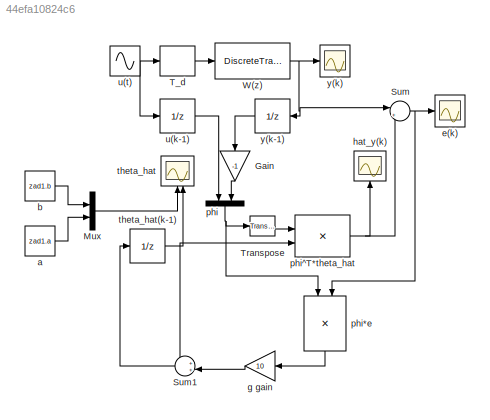
MODEL slx_44efa10824c6
KIND model
CONFIG AbsTol = auto
CONFIG EnableMultiTasking = off
CONFIG FixedStep = 1e-3
CONFIG MaxStep = auto
CONFIG MinStep = auto
CONFIG RelTol = 1e-3
CONFIG SampleTimeConstraint = Unconstrained
CONFIG SolverName = FixedStepAuto
CONFIG StartTime = 0.0
CONFIG StopTime = 20.0
BLOCK [Gain] Gain
  Gain = -1
  NameLocation = left
BLOCK [Mux] Mux
  DisplayOption = bar
  Inputs = 2
BLOCK [Sum] Sum
  Inputs = |+-
BLOCK [Sum] Sum1
  Inputs = ++|
  NameLocation = top
BLOCK [ZeroOrderHold] T_d
  SampleTime = 0.1
BLOCK [Reference] Transpose  REF=matrix_library/Transpose
  LibrarySourceBlock = simulink/Matrix\nOperations/Transpose
  SourceBlock = matrix_library/Transpose
  SourceType = Transpose
BLOCK [DiscreteTransferFcn] W(z)
  Denominator = [1 zad1.a]
  InputPortMap = u0
  Numerator = [0 zad1.b]
BLOCK [Constant] a
  Value = zad1.a
BLOCK [Constant] b
  Value = zad1.b
BLOCK [Scope] e(k)
  Floating = off
  NumInputPorts = 1
  ScopeSpecificationString = Simulink.scopes.TimeScopeBlockCfg('CurrentConfiguration', extmgr.ConfigurationSet(extmgr.Configuration('Core','General UI',true,'FigureColor',[1 1 1]),extmgr.Configuration('Core','Source UI',true),extmgr.Configuration('Sources','WiredSimulink',true,'DataLoggingVariableName','ScopeData2'),extmgr.Configuration('Visuals','Time Domain',true,'SerializedDisplays',{struct('MinYLimReal','-2209249559441154...<+3732ch>
BLOCK [Gain] g gain
  Gain = 10
  NameLocation = top
BLOCK [Scope] hat_y(k)
  Floating = off
  NameLocation = top
  NumInputPorts = 1
  ScopeSpecificationString = Simulink.scopes.TimeScopeBlockCfg('CurrentConfiguration', extmgr.ConfigurationSet(extmgr.Configuration('Core','General UI',true,'FigureColor',[1 1 1]),extmgr.Configuration('Core','Source UI',true),extmgr.Configuration('Sources','WiredSimulink',true,'DataLoggingVariableName','ScopeData1'),extmgr.Configuration('Visuals','Time Domain',true,'SerializedDisplays',{struct('MinYLimReal','-1921981410354740...<+3751ch>
BLOCK [Mux] phi
  DisplayOption = bar
  Inputs = 2
  NameLocation = left
BLOCK [Product] phi*e
  Multiplication = Matrix(*)
  NameLocation = left
BLOCK [Product] phi^T*theta_hat
  Multiplication = Matrix(*)
BLOCK [Scope] theta_hat
  Floating = off
  NameLocation = left
  NumInputPorts = 2
  ScopeSpecificationString = Simulink.scopes.TimeScopeBlockCfg('CurrentConfiguration', extmgr.ConfigurationSet(extmgr.Configuration('Core','General UI',true,'FigureColor',[1 1 1]),extmgr.Configuration('Core','Source UI',true),extmgr.Configuration('Sources','WiredSimulink',true,'DataLoggingVariableName','ScopeData3'),extmgr.Configuration('Visuals','Time Domain',true,'SerializedDisplays',{struct('MinYLimReal','-9767996532257885...<+3708ch>
BLOCK [UnitDelay] theta_hat(k-1)
  HasFrameUpgradeWarning = on
  InitialCondition = [0;0];
  SampleTime = 0.1
BLOCK [UnitDelay] u(k-1)
  HasFrameUpgradeWarning = on
  SampleTime = 0.1
BLOCK [Sin] u(t)
  Frequency = zad1.w
BLOCK [Scope] y(k)
  Floating = off
  NumInputPorts = 1
  ScopeSpecificationString = Simulink.scopes.TimeScopeBlockCfg('CurrentConfiguration', extmgr.ConfigurationSet(extmgr.Configuration('Core','General UI',true,'FigureColor',[1 1 1]),extmgr.Configuration('Core','Source UI',true),extmgr.Configuration('Sources','WiredSimulink',true),extmgr.Configuration('Visuals','Time Domain',true,'SerializedDisplays',{struct('MinYLimReal','-2.08621','MaxYLimReal','2.05146','YLabelReal','y(k)','M...<+2329ch>
BLOCK [UnitDelay] y(k-1)
  HasFrameUpgradeWarning = on
  SampleTime = 0.1
LINE Gain:1 -> phi:2
LINE Mux:1 -> theta_hat:1
LINE Sum1:1 -> theta_hat(k-1):1
NET Sum:1 -> e(k):1, phi*e:2
LINE T_d:1 -> W(z):1
LINE Transpose:1 -> phi^T*theta_hat:1
NET W(z):1 -> Sum:1, y(k):1, y(k-1):1
LINE a:1 -> Mux:2
LINE b:1 -> Mux:1
LINE g gain:1 -> Sum1:2
LINE phi*e:1 -> g gain:1
NET phi:1 -> Transpose:1, phi*e:1
NET phi^T*theta_hat:1 -> Sum:2, hat_y(k):1
NET theta_hat(k-1):1 -> Sum1:1, phi^T*theta_hat:2, theta_hat:2
LINE u(k-1):1 -> phi:1
NET u(t):1 -> T_d:1, u(k-1):1
LINE y(k-1):1 -> Gain:1
note: NET lines group one-source signal fan-out (src -> all destinations, sorted); 1:1 wires keep LINE
